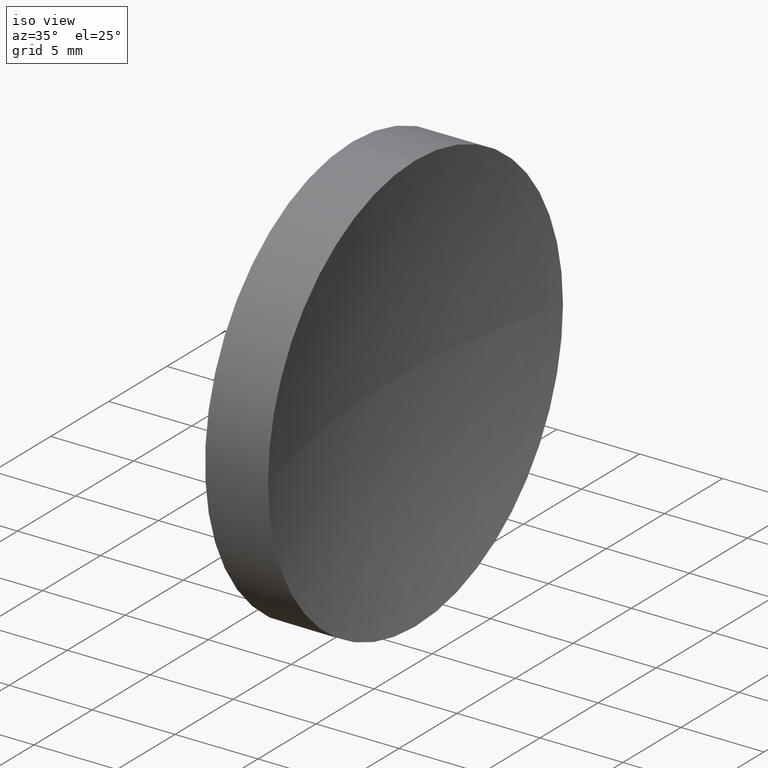
[diagram: clean part render]
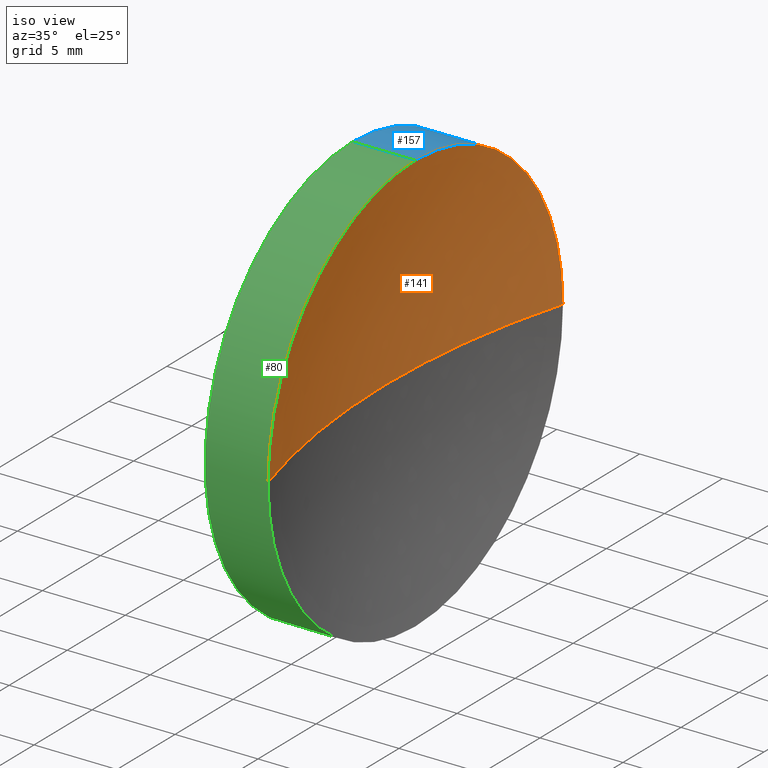
[diagram: same view with three faces highlighted in distinct colors, each labeled with its STEP entity id]
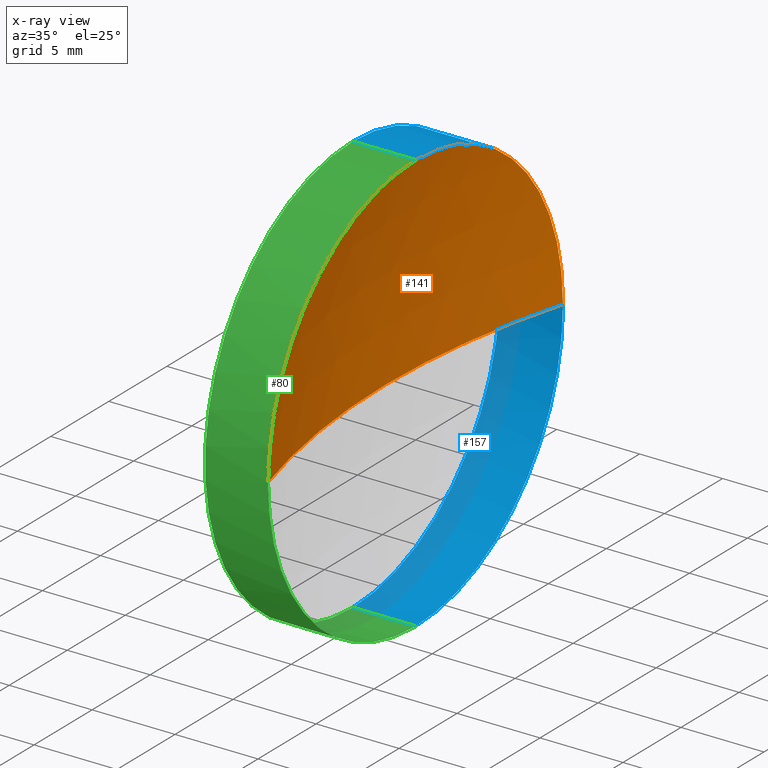
[diagram: x-ray of the same camera — body ghosted, the three highlighted faces saturated]
A machine part, iso view with three faces highlighted in distinct colors.
The next image is the same camera in x-ray (body ghosted, the three faces saturated) — at least one of them is partly hidden behind the body in this view.
Their STEP definitions:

[orange] entity #141 — the highlighted spherical surface has radius 45.85 mm.
#14 = DIRECTION ( 'NONE',  ( 1.000000000000000000, 0.0000000000000000000, 0.0000000000000000000 ) ) ;
#18 = ORIENTED_EDGE ( 'NONE', *, *, #167, .F. ) ;
#20 = ORIENTED_EDGE ( 'NONE', *, *, #170, .T. ) ;
#22 = AXIS2_PLACEMENT_3D ( 'NONE', #26, #61, #52 ) ;
#24 = DIRECTION ( 'NONE',  ( 0.0000000000000000000, 0.0000000000000000000, 1.000000000000000000 ) ) ;
#25 = VERTEX_POINT ( 'NONE', #106 ) ;
#26 = CARTESIAN_POINT ( 'NONE',  ( 167.2129307920347100, 71.19398908659368900, 0.0000000000000000000 ) ) ;
#28 = CARTESIAN_POINT ( 'NONE',  ( 167.2129307920347100, 71.19398908659368900, 0.0000000000000000000 ) ) ;
#33 = AXIS2_PLACEMENT_3D ( 'NONE', #128, #37, #77 ) ;
#35 = CARTESIAN_POINT ( 'NONE',  ( 123.1569153117396200, 71.19398908659370300, 12.69999999999998900 ) ) ;
#37 = DIRECTION ( 'NONE',  ( -1.000000000000000000, -0.0000000000000000000, -0.0000000000000000000 ) ) ;
#42 = ORIENTED_EDGE ( 'NONE', *, *, #134, .F. ) ;
#45 = AXIS2_PLACEMENT_3D ( 'NONE', #130, #183, #24 ) ;
#52 = DIRECTION ( 'NONE',  ( 0.0000000000000000000, 1.000000000000000000, 0.0000000000000000000 ) ) ;
#54 = VERTEX_POINT ( 'NONE', #35 ) ;
#61 = DIRECTION ( 'NONE',  ( 0.0000000000000000000, 0.0000000000000000000, -1.000000000000000000 ) ) ;
#62 = ORIENTED_EDGE ( 'NONE', *, *, #140, .F. ) ;
#73 = CARTESIAN_POINT ( 'NONE',  ( 123.1569153117396200, 83.89398908659367700, 0.0000000000000000000 ) ) ;
#74 = VERTEX_POINT ( 'NONE', #73 ) ;
#77 = DIRECTION ( 'NONE',  ( 0.0000000000000000000, 0.0000000000000000000, 1.000000000000000000 ) ) ;
#103 = CIRCLE ( 'NONE', #162, 45.85000000000001600 ) ;
#104 = VERTEX_POINT ( 'NONE', #148 ) ;
#106 = CARTESIAN_POINT ( 'NONE',  ( 123.1569153117396200, 58.49398908659370000, -1.555301434917136900E-015 ) ) ;
#110 = DIRECTION ( 'NONE',  ( 0.0000000000000000000, 1.224646799147353200E-016, -1.000000000000000000 ) ) ;
#113 = CARTESIAN_POINT ( 'NONE',  ( 167.2129307920347100, 71.19398908659368900, 0.0000000000000000000 ) ) ;
#126 = EDGE_LOOP ( 'NONE', ( #18, #20, #62, #42 ) ) ;
#128 = CARTESIAN_POINT ( 'NONE',  ( 123.1569153117396200, 71.19398908659370300, 0.0000000000000000000 ) ) ;
#130 = CARTESIAN_POINT ( 'NONE',  ( 123.1569153117396200, 71.19398908659370300, 0.0000000000000000000 ) ) ;
#131 = DIRECTION ( 'NONE',  ( 0.0000000000000000000, 0.0000000000000000000, 1.000000000000000000 ) ) ;
#134 = EDGE_CURVE ( 'NONE', #54, #74, #161, .T. ) ;
#140 = EDGE_CURVE ( 'NONE', #74, #104, #154, .T. ) ;
#141 = ADVANCED_FACE ( 'NONE', ( #143 ), #147, .F. ) ;
#143 = FACE_OUTER_BOUND ( 'NONE', #126, .T. ) ;
#147 = SPHERICAL_SURFACE ( 'NONE', #22, 45.85000000000001600 ) ;
#148 = CARTESIAN_POINT ( 'NONE',  ( 121.3629307920347000, 71.19398908659368900, 0.0000000000000000000 ) ) ;
#154 = CIRCLE ( 'NONE', #182, 45.85000000000003000 ) ;
#161 = CIRCLE ( 'NONE', #45, 12.69999999999998900 ) ;
#162 = AXIS2_PLACEMENT_3D ( 'NONE', #113, #110, #180 ) ;
#167 = EDGE_CURVE ( 'NONE', #25, #54, #181, .T. ) ;
#170 = EDGE_CURVE ( 'NONE', #25, #104, #103, .T. ) ;
#180 = DIRECTION ( 'NONE',  ( 0.0000000000000000000, 1.000000000000000000, 1.224646799147353200E-016 ) ) ;
#181 = CIRCLE ( 'NONE', #33, 12.69999999999998900 ) ;
#182 = AXIS2_PLACEMENT_3D ( 'NONE', #28, #131, #14 ) ;
#183 = DIRECTION ( 'NONE',  ( -1.000000000000000000, -0.0000000000000000000, -0.0000000000000000000 ) ) ;

[blue] entity #157 — the highlighted cylindrical surface (partial cylindrical patch) has radius 12.7 mm, axis along (-1, -0, -0).
#3 = ORIENTED_EDGE ( 'NONE', *, *, #101, .T. ) ;
#13 = CARTESIAN_POINT ( 'NONE',  ( 123.1569153117396200, 71.19398908659370300, -12.69999999999998900 ) ) ;
#17 = CIRCLE ( 'NONE', #58, 12.70000000000000300 ) ;
#23 = DIRECTION ( 'NONE',  ( 0.0000000000000000000, 0.0000000000000000000, 1.000000000000000000 ) ) ;
#24 = DIRECTION ( 'NONE',  ( 0.0000000000000000000, 0.0000000000000000000, 1.000000000000000000 ) ) ;
#30 = ORIENTED_EDGE ( 'NONE', *, *, #134, .T. ) ;
#31 = FACE_OUTER_BOUND ( 'NONE', #163, .T. ) ;
#34 = CARTESIAN_POINT ( 'NONE',  ( 119.3629307920347200, 71.19398908659370300, 0.0000000000000000000 ) ) ;
#35 = CARTESIAN_POINT ( 'NONE',  ( 123.1569153117396200, 71.19398908659370300, 12.69999999999998900 ) ) ;
#39 = VECTOR ( 'NONE', #97, 1000.000000000000000 ) ;
#40 = DIRECTION ( 'NONE',  ( -1.000000000000000000, -0.0000000000000000000, -0.0000000000000000000 ) ) ;
#41 = ORIENTED_EDGE ( 'NONE', *, *, #59, .F. ) ;
#45 = AXIS2_PLACEMENT_3D ( 'NONE', #130, #183, #24 ) ;
#54 = VERTEX_POINT ( 'NONE', #35 ) ;
#57 = AXIS2_PLACEMENT_3D ( 'NONE', #168, #114, #179 ) ;
#58 = AXIS2_PLACEMENT_3D ( 'NONE', #34, #109, #23 ) ;
#59 = EDGE_CURVE ( 'NONE', #176, #146, #17, .T. ) ;
#70 = LINE ( 'NONE', #155, #39 ) ;
#73 = CARTESIAN_POINT ( 'NONE',  ( 123.1569153117396200, 83.89398908659367700, 0.0000000000000000000 ) ) ;
#74 = VERTEX_POINT ( 'NONE', #73 ) ;
#75 = CARTESIAN_POINT ( 'NONE',  ( 119.3629307920347200, 71.19398908659370300, -12.70000000000000100 ) ) ;
#95 = CIRCLE ( 'NONE', #125, 12.69999999999998900 ) ;
#96 = CARTESIAN_POINT ( 'NONE',  ( 119.3629307920347200, 71.19398908659370300, 12.70000000000000300 ) ) ;
#97 = DIRECTION ( 'NONE',  ( -1.000000000000000000, -0.0000000000000000000, -0.0000000000000000000 ) ) ;
#101 = EDGE_CURVE ( 'NONE', #74, #159, #95, .T. ) ;
#109 = DIRECTION ( 'NONE',  ( -1.000000000000000000, -0.0000000000000000000, -0.0000000000000000000 ) ) ;
#112 = CYLINDRICAL_SURFACE ( 'NONE', #57, 12.69999999999999600 ) ;
#114 = DIRECTION ( 'NONE',  ( -1.000000000000000000, -0.0000000000000000000, -0.0000000000000000000 ) ) ;
#117 = LINE ( 'NONE', #169, #186 ) ;
#118 = ORIENTED_EDGE ( 'NONE', *, *, #142, .T. ) ;
#120 = ORIENTED_EDGE ( 'NONE', *, *, #156, .F. ) ;
#125 = AXIS2_PLACEMENT_3D ( 'NONE', #165, #177, #129 ) ;
#129 = DIRECTION ( 'NONE',  ( 0.0000000000000000000, 0.0000000000000000000, 1.000000000000000000 ) ) ;
#130 = CARTESIAN_POINT ( 'NONE',  ( 123.1569153117396200, 71.19398908659370300, 0.0000000000000000000 ) ) ;
#134 = EDGE_CURVE ( 'NONE', #54, #74, #161, .T. ) ;
#142 = EDGE_CURVE ( 'NONE', #159, #146, #70, .T. ) ;
#146 = VERTEX_POINT ( 'NONE', #75 ) ;
#155 = CARTESIAN_POINT ( 'NONE',  ( 111.9552297575605700, 71.19398908659370300, -12.69999999999999600 ) ) ;
#156 = EDGE_CURVE ( 'NONE', #54, #176, #117, .T. ) ;
#157 = ADVANCED_FACE ( 'NONE', ( #31 ), #112, .T. ) ;
#159 = VERTEX_POINT ( 'NONE', #13 ) ;
#161 = CIRCLE ( 'NONE', #45, 12.69999999999998900 ) ;
#163 = EDGE_LOOP ( 'NONE', ( #3, #118, #41, #120, #30 ) ) ;
#165 = CARTESIAN_POINT ( 'NONE',  ( 123.1569153117396200, 71.19398908659370300, 0.0000000000000000000 ) ) ;
#168 = CARTESIAN_POINT ( 'NONE',  ( 111.9552297575605700, 71.19398908659370300, 0.0000000000000000000 ) ) ;
#169 = CARTESIAN_POINT ( 'NONE',  ( 111.9552297575605700, 71.19398908659370300, 12.69999999999999600 ) ) ;
#176 = VERTEX_POINT ( 'NONE', #96 ) ;
#177 = DIRECTION ( 'NONE',  ( -1.000000000000000000, -0.0000000000000000000, -0.0000000000000000000 ) ) ;
#179 = DIRECTION ( 'NONE',  ( 0.0000000000000000000, 0.0000000000000000000, 1.000000000000000000 ) ) ;
#183 = DIRECTION ( 'NONE',  ( -1.000000000000000000, -0.0000000000000000000, -0.0000000000000000000 ) ) ;
#186 = VECTOR ( 'NONE', #40, 1000.000000000000000 ) ;

[green] entity #80 — the highlighted cylindrical surface (partial cylindrical patch) has radius 12.7 mm, axis along (-1, -0, -0).
#10 = EDGE_CURVE ( 'NONE', #146, #176, #12, .T. ) ;
#12 = CIRCLE ( 'NONE', #46, 12.70000000000000300 ) ;
#13 = CARTESIAN_POINT ( 'NONE',  ( 123.1569153117396200, 71.19398908659370300, -12.69999999999998900 ) ) ;
#15 = AXIS2_PLACEMENT_3D ( 'NONE', #171, #175, #68 ) ;
#21 = DIRECTION ( 'NONE',  ( -1.000000000000000000, -0.0000000000000000000, -0.0000000000000000000 ) ) ;
#25 = VERTEX_POINT ( 'NONE', #106 ) ;
#33 = AXIS2_PLACEMENT_3D ( 'NONE', #128, #37, #77 ) ;
#35 = CARTESIAN_POINT ( 'NONE',  ( 123.1569153117396200, 71.19398908659370300, 12.69999999999998900 ) ) ;
#37 = DIRECTION ( 'NONE',  ( -1.000000000000000000, -0.0000000000000000000, -0.0000000000000000000 ) ) ;
#38 = ORIENTED_EDGE ( 'NONE', *, *, #156, .T. ) ;
#39 = VECTOR ( 'NONE', #97, 1000.000000000000000 ) ;
#40 = DIRECTION ( 'NONE',  ( -1.000000000000000000, -0.0000000000000000000, -0.0000000000000000000 ) ) ;
#46 = AXIS2_PLACEMENT_3D ( 'NONE', #127, #21, #178 ) ;
#54 = VERTEX_POINT ( 'NONE', #35 ) ;
#63 = ORIENTED_EDGE ( 'NONE', *, *, #167, .T. ) ;
#66 = CIRCLE ( 'NONE', #15, 12.69999999999998900 ) ;
#68 = DIRECTION ( 'NONE',  ( 0.0000000000000000000, 0.0000000000000000000, 1.000000000000000000 ) ) ;
#69 = ORIENTED_EDGE ( 'NONE', *, *, #184, .T. ) ;
#70 = LINE ( 'NONE', #155, #39 ) ;
#75 = CARTESIAN_POINT ( 'NONE',  ( 119.3629307920347200, 71.19398908659370300, -12.70000000000000100 ) ) ;
#77 = DIRECTION ( 'NONE',  ( 0.0000000000000000000, 0.0000000000000000000, 1.000000000000000000 ) ) ;
#79 = CYLINDRICAL_SURFACE ( 'NONE', #84, 12.69999999999999600 ) ;
#80 = ADVANCED_FACE ( 'NONE', ( #124 ), #79, .T. ) ;
#84 = AXIS2_PLACEMENT_3D ( 'NONE', #166, #137, #150 ) ;
#91 = EDGE_LOOP ( 'NONE', ( #139, #69, #63, #38, #94 ) ) ;
#94 = ORIENTED_EDGE ( 'NONE', *, *, #10, .F. ) ;
#96 = CARTESIAN_POINT ( 'NONE',  ( 119.3629307920347200, 71.19398908659370300, 12.70000000000000300 ) ) ;
#97 = DIRECTION ( 'NONE',  ( -1.000000000000000000, -0.0000000000000000000, -0.0000000000000000000 ) ) ;
#106 = CARTESIAN_POINT ( 'NONE',  ( 123.1569153117396200, 58.49398908659370000, -1.555301434917136900E-015 ) ) ;
#117 = LINE ( 'NONE', #169, #186 ) ;
#124 = FACE_OUTER_BOUND ( 'NONE', #91, .T. ) ;
#127 = CARTESIAN_POINT ( 'NONE',  ( 119.3629307920347200, 71.19398908659370300, 0.0000000000000000000 ) ) ;
#128 = CARTESIAN_POINT ( 'NONE',  ( 123.1569153117396200, 71.19398908659370300, 0.0000000000000000000 ) ) ;
#137 = DIRECTION ( 'NONE',  ( -1.000000000000000000, -0.0000000000000000000, -0.0000000000000000000 ) ) ;
#139 = ORIENTED_EDGE ( 'NONE', *, *, #142, .F. ) ;
#142 = EDGE_CURVE ( 'NONE', #159, #146, #70, .T. ) ;
#146 = VERTEX_POINT ( 'NONE', #75 ) ;
#150 = DIRECTION ( 'NONE',  ( 0.0000000000000000000, 0.0000000000000000000, 1.000000000000000000 ) ) ;
#155 = CARTESIAN_POINT ( 'NONE',  ( 111.9552297575605700, 71.19398908659370300, -12.69999999999999600 ) ) ;
#156 = EDGE_CURVE ( 'NONE', #54, #176, #117, .T. ) ;
#159 = VERTEX_POINT ( 'NONE', #13 ) ;
#166 = CARTESIAN_POINT ( 'NONE',  ( 111.9552297575605700, 71.19398908659370300, 0.0000000000000000000 ) ) ;
#167 = EDGE_CURVE ( 'NONE', #25, #54, #181, .T. ) ;
#169 = CARTESIAN_POINT ( 'NONE',  ( 111.9552297575605700, 71.19398908659370300, 12.69999999999999600 ) ) ;
#171 = CARTESIAN_POINT ( 'NONE',  ( 123.1569153117396200, 71.19398908659370300, 0.0000000000000000000 ) ) ;
#175 = DIRECTION ( 'NONE',  ( -1.000000000000000000, -0.0000000000000000000, -0.0000000000000000000 ) ) ;
#176 = VERTEX_POINT ( 'NONE', #96 ) ;
#178 = DIRECTION ( 'NONE',  ( 0.0000000000000000000, 0.0000000000000000000, 1.000000000000000000 ) ) ;
#181 = CIRCLE ( 'NONE', #33, 12.69999999999998900 ) ;
#184 = EDGE_CURVE ( 'NONE', #159, #25, #66, .T. ) ;
#186 = VECTOR ( 'NONE', #40, 1000.000000000000000 ) ;